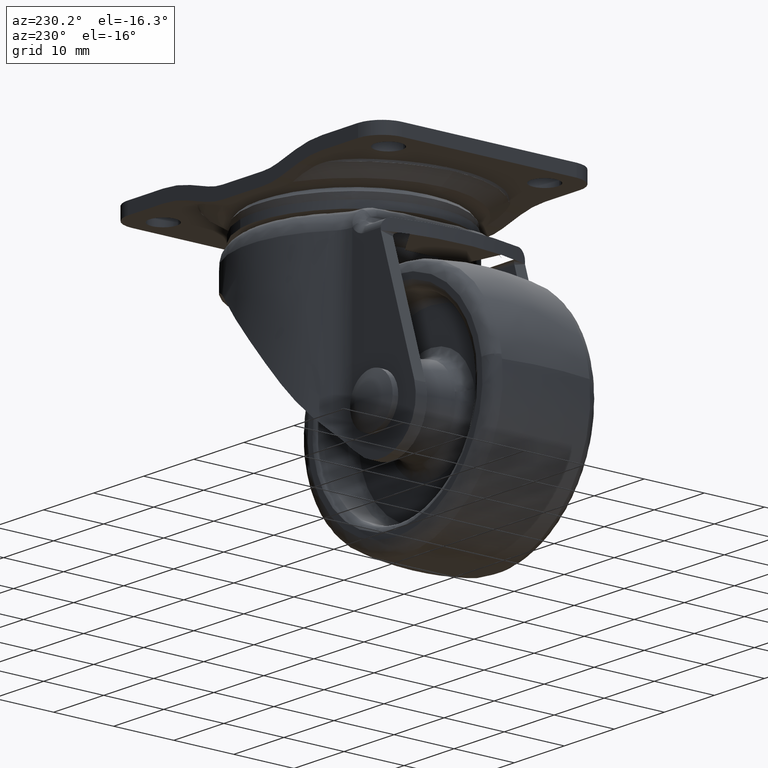
[diagram: clean part render]
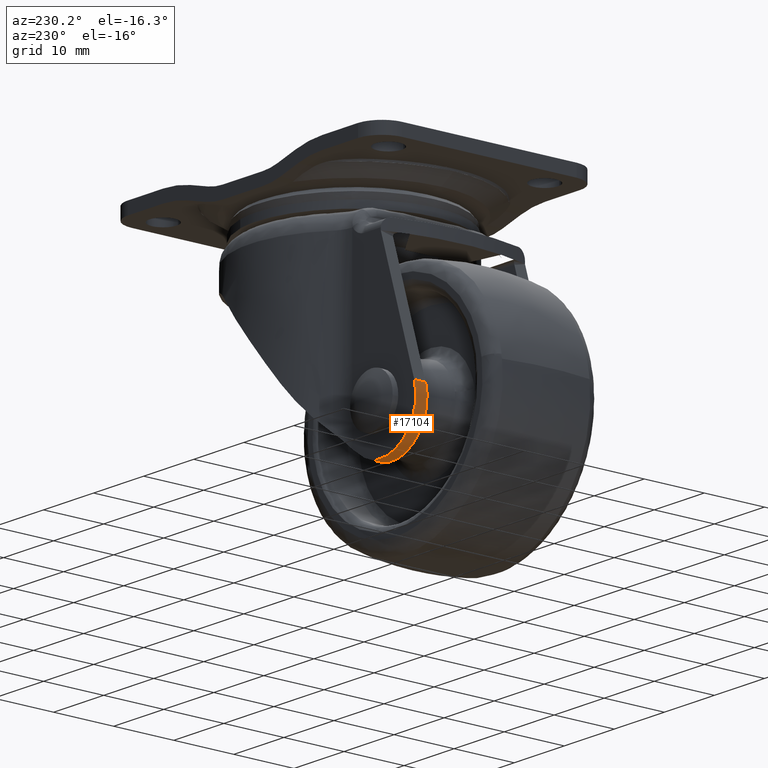
[diagram: same view with one face highlighted and labeled with its STEP entity id]
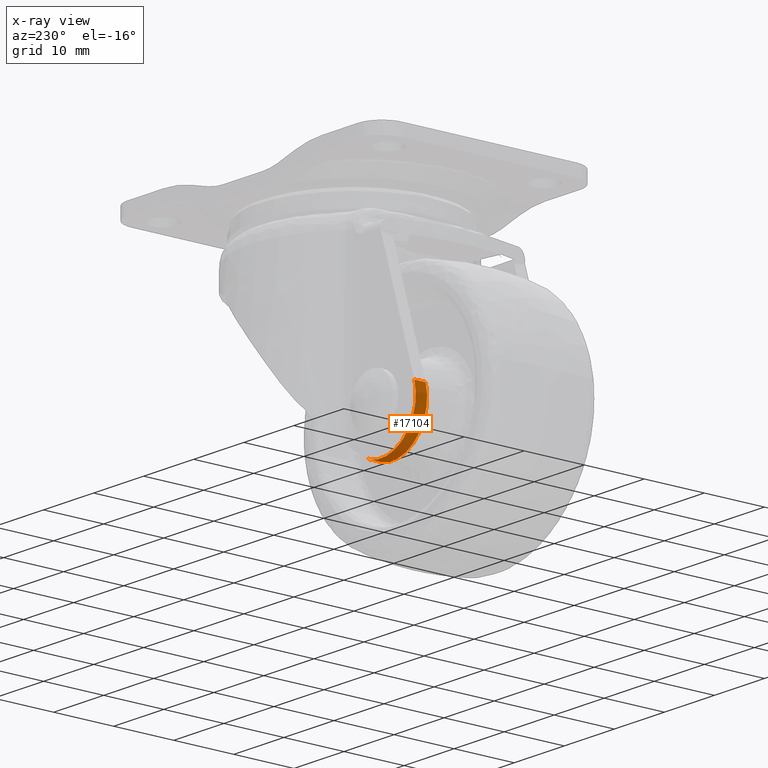
[diagram: x-ray of the same camera — body ghosted, the highlighted face saturated]
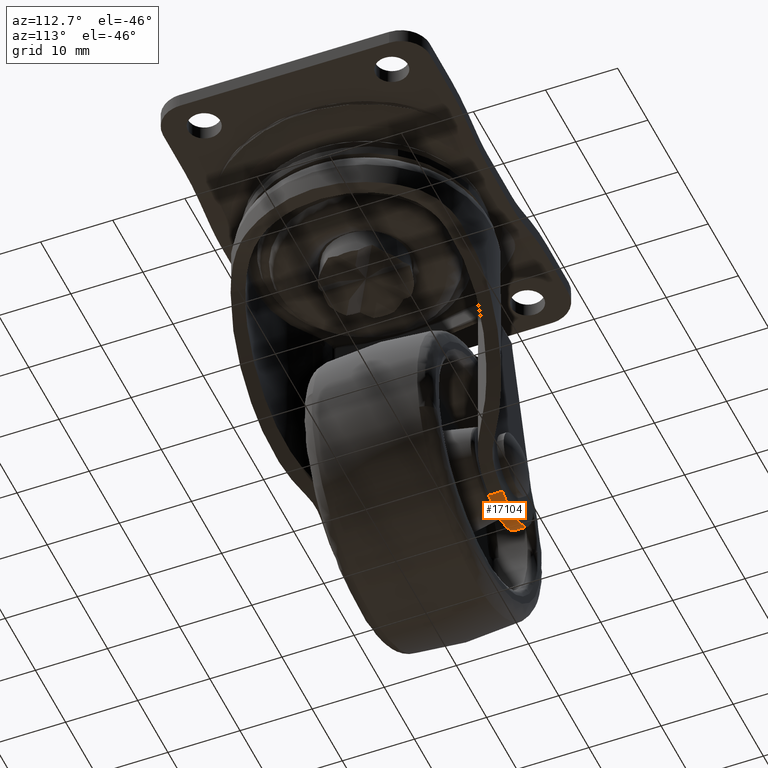
[diagram: same view with one face highlighted and labeled with its STEP entity id]
A machine part, auxiliary view. The second image highlights one B-rep face of the part: STEP entity #17104.
The next image is the same camera in x-ray: the body ghosted, the highlighted face saturated — about 0% of this face is hidden behind the body in this view.
A second angle (auxiliary view) of the same face is appended — the face is thin or edge-on in the first view.
In plain terms, the highlighted face is a freeform B-spline surface patch.
Its self-contained STEP definition (entity closure, byte-faithful):
#16502=CARTESIAN_POINT('',(-26.451253000000001,10.110123000000019,-33.747030000000002));
#16503=VERTEX_POINT('',#16502);
#16509=CARTESIAN_POINT('',(-16.526882959402649,10.110123000000019,-41.984015720199601));
#16510=VERTEX_POINT('',#16509);
#16511=CARTESIAN_POINT('',(-26.451253000000001,10.110123000000019,-33.747030000000002));
#16512=CARTESIAN_POINT('',(-27.793095020421319,10.110123000000021,-38.191554975995302));
#16513=CARTESIAN_POINT('',(-24.220608414924101,10.110123000000019,-41.156631994144632));
#16514=CARTESIAN_POINT('',(-20.648121809426893,10.110123000000021,-44.121709012293955));
#16515=CARTESIAN_POINT('',(-16.526882959402649,10.110123000000019,-41.984015720199601));
#16523=(BOUNDED_CURVE()B_SPLINE_CURVE(2,(#16511,#16512,#16513,#16514,#16515),.UNSPECIFIED.,.F.,.U.)B_SPLINE_CURVE_WITH_KNOTS((3,2,3),(0.0,0.500000000000000,1.0),.UNSPECIFIED.)CURVE()GEOMETRIC_REPRESENTATION_ITEM()RATIONAL_B_SPLINE_CURVE((1.0,0.833366745029347,1.0,0.833366745029347,1.0))REPRESENTATION_ITEM(''));
#16524=EDGE_CURVE('',#16503,#16510,#16523,.T.);
#16884=CARTESIAN_POINT('',(-26.451253000000001,12.000122999999959,-33.747030000000002));
#16885=VERTEX_POINT('',#16884);
#16891=CARTESIAN_POINT('',(-26.451253000000001,12.000122999999959,-33.747030000000002));
#16892=CARTESIAN_POINT('',(-26.451253000000001,10.110123000000019,-33.747030000000002));
#16893=QUASI_UNIFORM_CURVE('',1,(#16891,#16892),.UNSPECIFIED.,.F.,.U.);
#16894=EDGE_CURVE('',#16885,#16503,#16893,.T.);
#17001=CARTESIAN_POINT('',(-16.526882959402649,12.000122999999959,-41.984015720199601));
#17002=VERTEX_POINT('',#17001);
#17003=CARTESIAN_POINT('',(-16.526882959402649,12.000122999999959,-41.984015720199601));
#17004=CARTESIAN_POINT('',(-16.526882959402649,10.110123000000019,-41.984015720199601));
#17005=QUASI_UNIFORM_CURVE('',1,(#17003,#17004),.UNSPECIFIED.,.F.,.U.);
#17006=EDGE_CURVE('',#17002,#16510,#17005,.T.);
#17066=CARTESIAN_POINT('',(-16.281740620507641,12.047372999999959,-41.850591822553767));
#17067=CARTESIAN_POINT('',(-16.281740620507641,10.061691750000019,-41.850591822553767));
#17068=CARTESIAN_POINT('',(-20.578937412531108,12.047372999999958,-44.301715214479671));
#17069=CARTESIAN_POINT('',(-20.578937412531108,10.061691750000021,-44.301715214479671));
#17070=CARTESIAN_POINT('',(-24.323901786201851,12.047372999999959,-41.069201023983346));
#17071=CARTESIAN_POINT('',(-24.323901786201851,10.061691750000019,-41.069201023983346));
#17072=CARTESIAN_POINT('',(-28.068866159872595,12.047372999999958,-37.836686833487029));
#17073=CARTESIAN_POINT('',(-28.068866159872595,10.061691750000021,-37.836686833487029));
#17074=CARTESIAN_POINT('',(-26.271858958883929,12.047372999999959,-33.227492622844792));
#17075=CARTESIAN_POINT('',(-26.271858958883929,10.061691750000019,-33.227492622844792));
#17083=(BOUNDED_SURFACE()B_SPLINE_SURFACE(1,2,((#17066,#17068,#17070,#17072,#17074),(#17067,#17069,#17071,#17073,#17075)),.UNSPECIFIED.,.F.,.F.,.U.)B_SPLINE_SURFACE_WITH_KNOTS((2,2),(3,2,3),(0.0,1.0),(0.0,8.895571762699404,17.791143525398809),.UNSPECIFIED.)GEOMETRIC_REPRESENTATION_ITEM()RATIONAL_B_SPLINE_SURFACE(((1.0,0.816641555161679,1.0,0.816641555161679,1.0),(1.0,0.816641555161679,1.0,0.816641555161679,1.0)))REPRESENTATION_ITEM('')SURFACE());
#17084=ORIENTED_EDGE('',*,*,#17006,.T.);
#17085=ORIENTED_EDGE('',*,*,#16524,.F.);
#17086=ORIENTED_EDGE('',*,*,#16894,.F.);
#17087=CARTESIAN_POINT('',(-26.451253000000001,12.000122999999959,-33.747030000000002));
#17088=CARTESIAN_POINT('',(-27.793095020421319,12.000122999999961,-38.191554975995302));
#17089=CARTESIAN_POINT('',(-24.220608414924101,12.000122999999959,-41.156631994144632));
#17090=CARTESIAN_POINT('',(-20.648121809426893,12.000122999999961,-44.121709012293955));
#17091=CARTESIAN_POINT('',(-16.526882959402649,12.000122999999959,-41.984015720199601));
#17099=(BOUNDED_CURVE()B_SPLINE_CURVE(2,(#17087,#17088,#17089,#17090,#17091),.UNSPECIFIED.,.F.,.U.)B_SPLINE_CURVE_WITH_KNOTS((3,2,3),(0.0,0.500000000000000,1.0),.UNSPECIFIED.)CURVE()GEOMETRIC_REPRESENTATION_ITEM()RATIONAL_B_SPLINE_CURVE((1.0,0.833366745029347,1.0,0.833366745029347,1.0))REPRESENTATION_ITEM(''));
#17100=EDGE_CURVE('',#16885,#17002,#17099,.T.);
#17101=ORIENTED_EDGE('',*,*,#17100,.T.);
#17102=EDGE_LOOP('',(#17084,#17085,#17086,#17101));
#17103=FACE_OUTER_BOUND('',#17102,.T.);
#17104=ADVANCED_FACE('',(#17103),#17083,.T.);